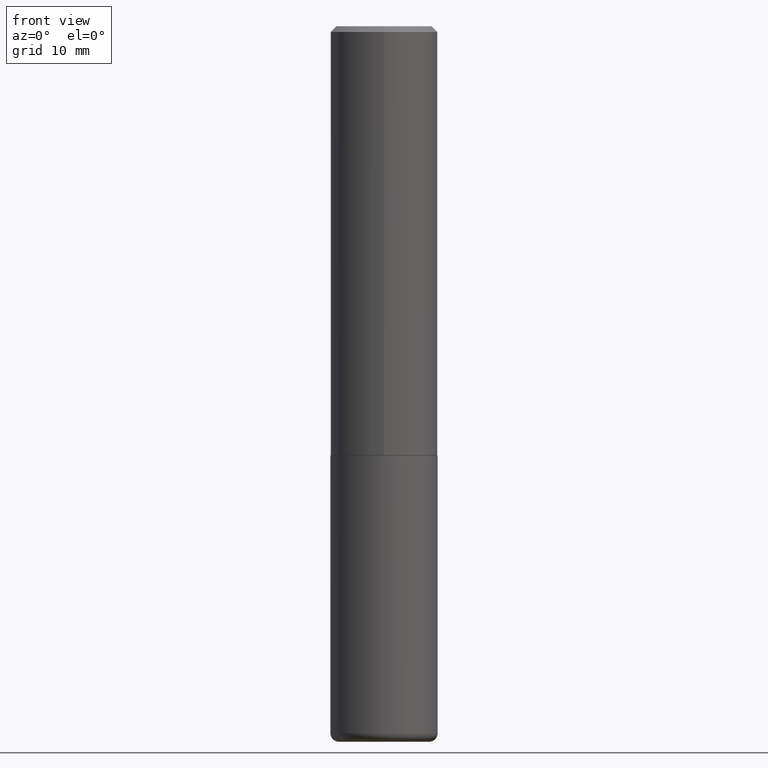
[diagram: clean part render]
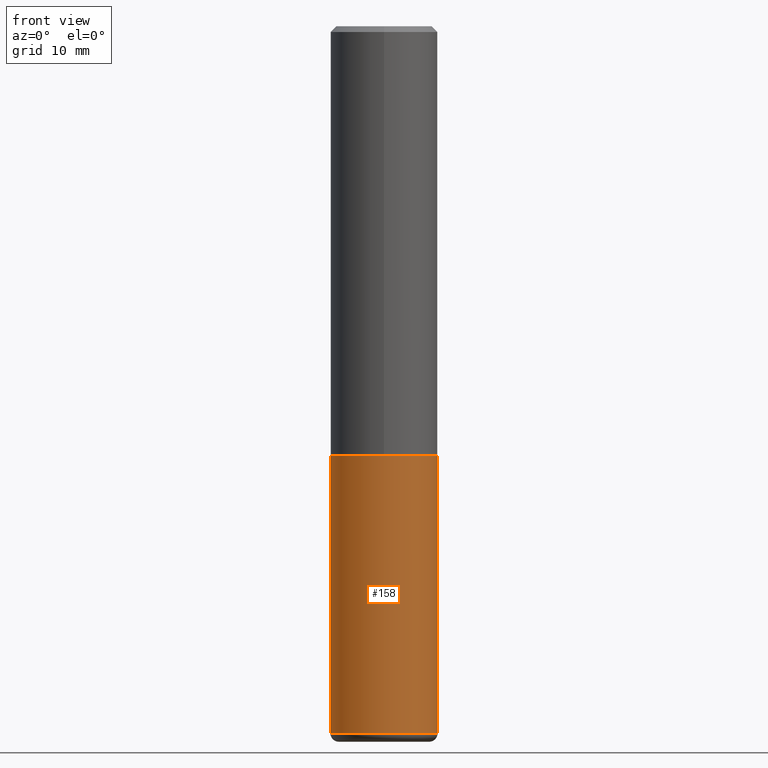
[diagram: same view with one face highlighted and labeled with its STEP entity id]
A machine part, front view. The second image highlights one B-rep face of the part: STEP entity #158.
In plain terms, the highlighted cylindrical surface (partial cylindrical patch) has radius 4.7625 mm, axis along (-0, 0, 1).
Its self-contained STEP definition (entity closure, byte-faithful):
#22 = ORIENTED_EDGE ( 'NONE', *, *, #346, .T. ) ;
#40 = LINE ( 'NONE', #43, #163 ) ;
#43 = CARTESIAN_POINT ( 'NONE',  ( 0.1875000000000000555, -1.309305502066175205E-15, 9.142831454617382414E-30 ) ) ;
#47 = VECTOR ( 'NONE', #340, 39.37007874015748143 ) ;
#70 = AXIS2_PLACEMENT_3D ( 'NONE', #352, #213, #354 ) ;
#72 = CARTESIAN_POINT ( 'NONE',  ( 6.040307951277287977E-29, -8.623958906942569995E-15, -2.470000000000000195 ) ) ;
#73 = CARTESIAN_POINT ( 'NONE',  ( 0.1875000000000000278, -6.546527510330893974E-15, -1.500000000000000222 ) ) ;
#107 = CIRCLE ( 'NONE', #70, 0.1875000000000000278 ) ;
#120 = EDGE_CURVE ( 'NONE', #338, #155, #386, .T. ) ;
#121 = DIRECTION ( 'NONE',  ( 1.000000000000000000, -6.982962677686265922E-15, 4.876176775795935793E-29 ) ) ;
#136 = ORIENTED_EDGE ( 'NONE', *, *, #355, .T. ) ;
#145 = ORIENTED_EDGE ( 'NONE', *, *, #183, .F. ) ;
#155 = VERTEX_POINT ( 'NONE', #254 ) ;
#158 = ADVANCED_FACE ( 'NONE', ( #234 ), #173, .T. ) ;
#163 = VECTOR ( 'NONE', #166, 39.37007874015748143 ) ;
#166 = DIRECTION ( 'NONE',  ( -2.445468806185136877E-29, 3.491481338843145188E-15, 1.000000000000000000 ) ) ;
#173 = CYLINDRICAL_SURFACE ( 'NONE', #405, 0.1875000000000000555 ) ;
#183 = EDGE_CURVE ( 'NONE', #155, #282, #107, .T. ) ;
#210 = CARTESIAN_POINT ( 'NONE',  ( 0.000000000000000000, 0.000000000000000000, 0.000000000000000000 ) ) ;
#213 = DIRECTION ( 'NONE',  ( -2.445468806185136597E-29, 3.491481338843145583E-15, 1.000000000000000000 ) ) ;
#226 = DIRECTION ( 'NONE',  ( -2.445468806185136597E-29, 3.491481338843145583E-15, 1.000000000000000000 ) ) ;
#227 = CIRCLE ( 'NONE', #247, 0.1875000000000000555 ) ;
#234 = FACE_OUTER_BOUND ( 'NONE', #409, .T. ) ;
#247 = AXIS2_PLACEMENT_3D ( 'NONE', #72, #226, #365 ) ;
#254 = CARTESIAN_POINT ( 'NONE',  ( -0.1875000000000000278, -5.598322828053456632E-15, -1.500000000000000222 ) ) ;
#255 = CARTESIAN_POINT ( 'NONE',  ( -0.1875000000000000555, 1.332267629550188243E-15, -9.223003294227950793E-30 ) ) ;
#282 = VERTEX_POINT ( 'NONE', #73 ) ;
#295 = CARTESIAN_POINT ( 'NONE',  ( 0.1875000000000001943, -9.933264409008746581E-15, -2.470000000000000195 ) ) ;
#324 = CARTESIAN_POINT ( 'NONE',  ( -0.1875000000000001943, -7.291691277392382147E-15, -2.470000000000000195 ) ) ;
#338 = VERTEX_POINT ( 'NONE', #324 ) ;
#340 = DIRECTION ( 'NONE',  ( -2.445468806185136877E-29, 3.491481338843145188E-15, 1.000000000000000000 ) ) ;
#346 = EDGE_CURVE ( 'NONE', #385, #282, #40, .T. ) ;
#348 = DIRECTION ( 'NONE',  ( -2.445468806185136597E-29, 3.491481338843145583E-15, 1.000000000000000000 ) ) ;
#352 = CARTESIAN_POINT ( 'NONE',  ( 3.668203209277704895E-29, -5.237222008264718177E-15, -1.500000000000000222 ) ) ;
#354 = DIRECTION ( 'NONE',  ( 1.000000000000000000, -6.982962677686266711E-15, 0.000000000000000000 ) ) ;
#355 = EDGE_CURVE ( 'NONE', #338, #385, #227, .T. ) ;
#365 = DIRECTION ( 'NONE',  ( 1.000000000000000000, -6.982962677686265922E-15, 0.000000000000000000 ) ) ;
#366 = ORIENTED_EDGE ( 'NONE', *, *, #120, .F. ) ;
#385 = VERTEX_POINT ( 'NONE', #295 ) ;
#386 = LINE ( 'NONE', #255, #47 ) ;
#405 = AXIS2_PLACEMENT_3D ( 'NONE', #210, #348, #121 ) ;
#409 = EDGE_LOOP ( 'NONE', ( #366, #136, #22, #145 ) ) ;